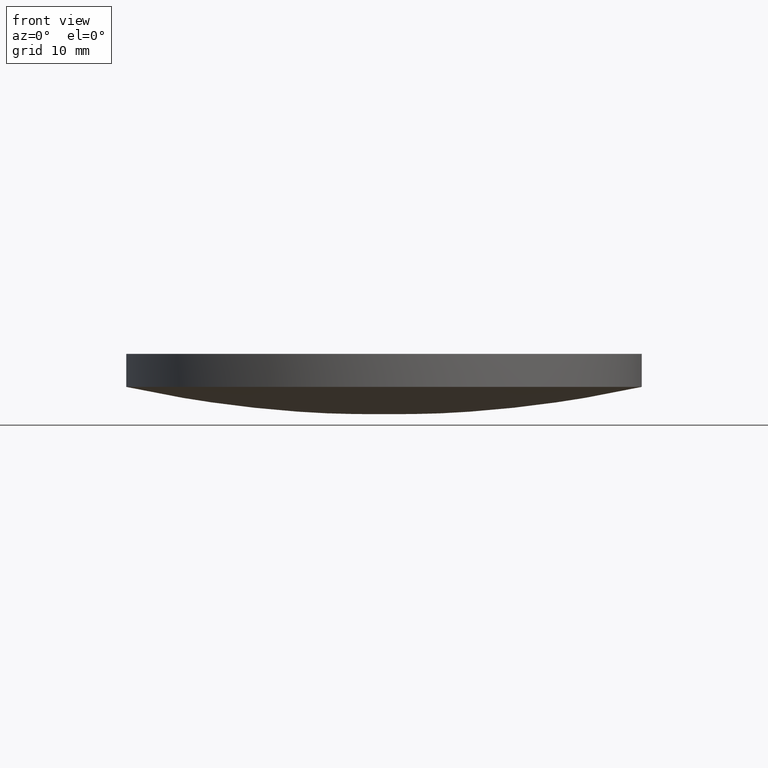
[diagram: clean part render]
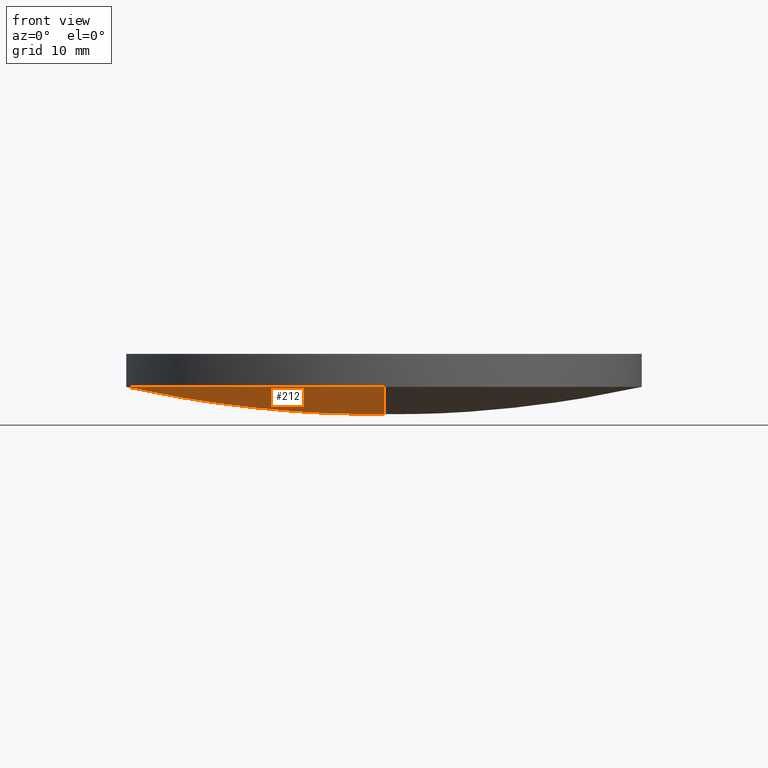
[diagram: same view with one face highlighted and labeled with its STEP entity id]
A machine part, front view. The second image highlights one B-rep face of the part: STEP entity #212.
In plain terms, the highlighted face is a freeform B-spline surface patch.
Its self-contained STEP definition (entity closure, byte-faithful):
#9 = CARTESIAN_POINT ( 'NONE',  ( -16.74556419753230300, -25.69999964640433300, 3.715086385571858800 ) ) ;
#16 = DIRECTION ( 'NONE',  ( -0.0000000000000000000, -0.0000000000000000000, -1.000000000000000000 ) ) ;
#34 = CARTESIAN_POINT ( 'NONE',  ( -25.39999999999999900, 7.995584178184967200E-015, 2.742355090084500200 ) ) ;
#57 = VERTEX_POINT ( 'NONE', #197 ) ;
#59 = AXIS2_PLACEMENT_3D ( 'NONE', #203, #84, #102 ) ;
#65 = CARTESIAN_POINT ( 'NONE',  ( -17.28736506798856400, 8.703598526910676400, -0.01494419506241220900 ) ) ;
#69 = CARTESIAN_POINT ( 'NONE',  ( 0.0000000000000000000, -8.703598526910653300, -0.9510645303030277300 ) ) ;
#70 = CARTESIAN_POINT ( 'NONE',  ( -1.040834085586084300E-014, 25.69999964640435400, 2.808304865731418200 ) ) ;
#75 =( BOUNDED_SURFACE ( )  B_SPLINE_SURFACE ( 3, 3, ( 
 ( #104, #9, #221, #155 ),
 ( #121, #138, #174, #69 ),
 ( #173, #65, #202, #209 ),
 ( #207, #109, #177, #70 ) ),
 .UNSPECIFIED., .F., .F., .T. ) 
 B_SPLINE_SURFACE_WITH_KNOTS ( ( 4, 4 ),
 ( 4, 4 ),
 ( 0.0000000000000000000, 1.000000000000000000 ),
 ( 0.0000000000000000000, 1.000000000000000000 ),
 .UNSPECIFIED. ) 
 GEOMETRIC_REPRESENTATION_ITEM ( )  RATIONAL_B_SPLINE_SURFACE ( (
 ( 1.000000000000000000, 0.9961017213591967200, 0.9961017213591967200, 1.000000000000000000),
 ( 0.9842671996317566800, 0.9804302518305889600, 0.9804302518305889600, 0.9842671996317566800),
 ( 0.9842671996317566800, 0.9804302518305889600, 0.9804302518305889600, 0.9842671996317566800),
 ( 1.000000000000000000, 0.9961017213591967200, 0.9961017213591967200, 1.000000000000000000) ) ) 
 REPRESENTATION_ITEM ( '' )  SURFACE ( )  );
#84 = DIRECTION ( 'NONE',  ( -0.0000000000000000000, -0.0000000000000000000, -1.000000000000000000 ) ) ;
#85 = EDGE_LOOP ( 'NONE', ( #154, #128, #186 ) ) ;
#89 = CARTESIAN_POINT ( 'NONE',  ( 2.842170943040400100E-014, 2.131628207280299900E-014, 119.0000000000000100 ) ) ;
#102 = DIRECTION ( 'NONE',  ( 1.000000000000000000, 0.0000000000000000000, 0.0000000000000000000 ) ) ;
#104 = CARTESIAN_POINT ( 'NONE',  ( -24.94706102982444300, -25.69999964640433600, 5.518044764160734400 ) ) ;
#107 = CIRCLE ( 'NONE', #117, 25.39999999999999900 ) ;
#109 = CARTESIAN_POINT ( 'NONE',  ( -16.74556419753232100, 25.69999964640435100, 3.715086385571858300 ) ) ;
#111 = VERTEX_POINT ( 'NONE', #152 ) ;
#117 = AXIS2_PLACEMENT_3D ( 'NONE', #229, #16, #228 ) ;
#121 = CARTESIAN_POINT ( 'NONE',  ( -25.75422041972877500, -8.703598526910662200, 1.846348701694550300 ) ) ;
#125 = FACE_OUTER_BOUND ( 'NONE', #85, .T. ) ;
#128 = ORIENTED_EDGE ( 'NONE', *, *, #194, .T. ) ;
#138 = CARTESIAN_POINT ( 'NONE',  ( -17.28736506798856000, -8.703598526910658600, -0.01494419506241329700 ) ) ;
#146 = AXIS2_PLACEMENT_3D ( 'NONE', #89, #187, #223 ) ;
#152 = CARTESIAN_POINT ( 'NONE',  ( 1.806128859801101300E-014, 25.39999999999994900, 2.742355090084492200 ) ) ;
#154 = ORIENTED_EDGE ( 'NONE', *, *, #210, .F. ) ;
#155 = CARTESIAN_POINT ( 'NONE',  ( 3.469446951953614200E-015, -25.69999964640432900, 2.808304865731420000 ) ) ;
#163 = CIRCLE ( 'NONE', #146, 119.0000000000000000 ) ;
#173 = CARTESIAN_POINT ( 'NONE',  ( -25.75422041972878200, 8.703598526910672800, 1.846348701694551900 ) ) ;
#174 = CARTESIAN_POINT ( 'NONE',  ( -8.669028249741142400, -8.703598526910655100, -0.9510645303030257300 ) ) ;
#177 = CARTESIAN_POINT ( 'NONE',  ( -8.397333458010464800, 25.69999964640435100, 2.808304865731420500 ) ) ;
#186 = ORIENTED_EDGE ( 'NONE', *, *, #231, .T. ) ;
#187 = DIRECTION ( 'NONE',  ( 1.000000000000000000, 2.441897141834629800E-016, -3.576540790375509800E-017 ) ) ;
#193 = CIRCLE ( 'NONE', #59, 25.39999999999999900 ) ;
#194 = EDGE_CURVE ( 'NONE', #57, #226, #193, .T. ) ;
#197 = CARTESIAN_POINT ( 'NONE',  ( 3.046612607853090000E-014, -25.39999999999992400, 2.742355090084498800 ) ) ;
#202 = CARTESIAN_POINT ( 'NONE',  ( -8.669028249741145900, 8.703598526910679900, -0.9510645303030247400 ) ) ;
#203 = CARTESIAN_POINT ( 'NONE',  ( 9.992007221626412800E-016, 4.884981308350691100E-015, 2.742355090084500200 ) ) ;
#207 = CARTESIAN_POINT ( 'NONE',  ( -24.94706102982446400, 25.69999964640434700, 5.518044764160734400 ) ) ;
#209 = CARTESIAN_POINT ( 'NONE',  ( -3.469446951953613800E-015, 8.703598526910679900, -0.9510645303030269600 ) ) ;
#210 = EDGE_CURVE ( 'NONE', #57, #111, #163, .T. ) ;
#212 = ADVANCED_FACE ( 'NONE', ( #125 ), #75, .T. ) ;
#221 = CARTESIAN_POINT ( 'NONE',  ( -8.397333458010448800, -25.69999964640433300, 2.808304865731422200 ) ) ;
#223 = DIRECTION ( 'NONE',  ( 2.441897141834630300E-016, -1.000000000000000000, -4.664802624475447800E-016 ) ) ;
#226 = VERTEX_POINT ( 'NONE', #34 ) ;
#228 = DIRECTION ( 'NONE',  ( 1.000000000000000000, 0.0000000000000000000, 0.0000000000000000000 ) ) ;
#229 = CARTESIAN_POINT ( 'NONE',  ( 9.992007221626412800E-016, 4.884981308350691100E-015, 2.742355090084500200 ) ) ;
#231 = EDGE_CURVE ( 'NONE', #226, #111, #107, .T. ) ;